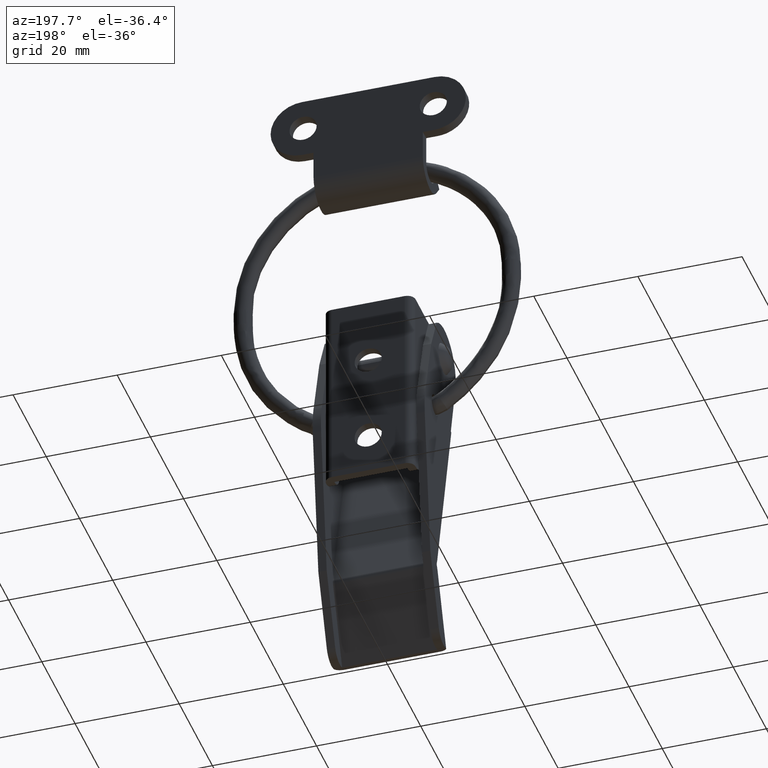
[diagram: clean part render]
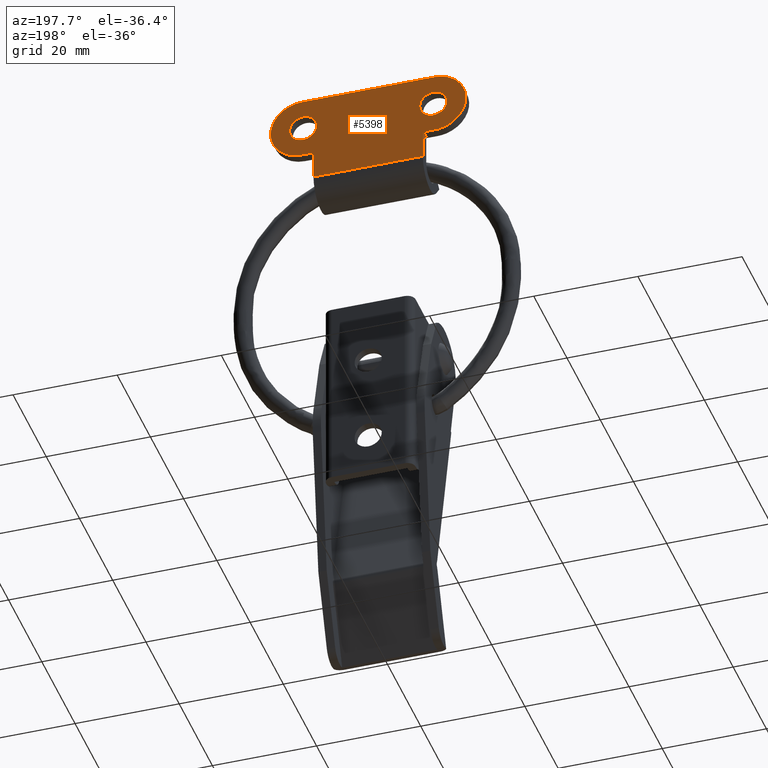
[diagram: same view with one face highlighted and labeled with its STEP entity id]
A machine part, auxiliary view. The second image highlights one B-rep face of the part: STEP entity #5398.
In plain terms, the highlighted face is a freeform B-spline surface patch.
Its self-contained STEP definition (entity closure, byte-faithful):
#4583=CARTESIAN_POINT('',(-12.500000000000000,11.599990000000000,52.100000000000001));
#4584=VERTEX_POINT('',#4583);
#4585=CARTESIAN_POINT('',(-15.091985067688750,11.599990000000000,49.703993649113279));
#4586=VERTEX_POINT('',#4585);
#4587=CARTESIAN_POINT('',(-12.500000000000000,11.599990000000000,52.100000000000001));
#4588=CARTESIAN_POINT('',(-14.903415277900445,11.599990000000000,52.100000000000001));
#4589=CARTESIAN_POINT('',(-15.091985067688750,11.599990000000002,49.703993649113279));
#4597=(BOUNDED_CURVE()B_SPLINE_CURVE(2,(#4587,#4588,#4589),.UNSPECIFIED.,.F.,.U.)B_SPLINE_CURVE_WITH_KNOTS((3,3),(0.0,0.236331300603550),.UNSPECIFIED.)CURVE()GEOMETRIC_REPRESENTATION_ITEM()RATIONAL_B_SPLINE_CURVE((1.0,0.723120658639426,0.969723356110842))REPRESENTATION_ITEM(''));
#4598=EDGE_CURVE('',#4584,#4586,#4597,.T.);
#4600=CARTESIAN_POINT('',(-9.908014932311252,11.599990000000000,49.296006350886707));
#4601=VERTEX_POINT('',#4600);
#4602=CARTESIAN_POINT('',(-9.908014932311252,11.599990000000005,49.296006350886714));
#4603=CARTESIAN_POINT('',(-9.899999999999999,11.599989999999996,49.397845721558134));
#4604=CARTESIAN_POINT('',(-9.900000000000000,11.599990000000000,49.500000000000000));
#4605=CARTESIAN_POINT('',(-9.900000000000000,11.599990000000000,52.100000000000001));
#4606=CARTESIAN_POINT('',(-12.500000000000000,11.599990000000000,52.100000000000001));
#4614=(BOUNDED_CURVE()B_SPLINE_CURVE(2,(#4602,#4603,#4604,#4605,#4606),.UNSPECIFIED.,.F.,.U.)B_SPLINE_CURVE_WITH_KNOTS((3,2,3),(0.736331300603550,0.750000000000000,1.0),.UNSPECIFIED.)CURVE()GEOMETRIC_REPRESENTATION_ITEM()RATIONAL_B_SPLINE_CURVE((0.969723356110841,0.983986122547121,1.0,0.707106781186548,1.0))REPRESENTATION_ITEM(''));
#4615=EDGE_CURVE('',#4601,#4584,#4614,.T.);
#4682=CARTESIAN_POINT('',(-12.500000000000000,11.599990000000000,46.900000000000013));
#4683=VERTEX_POINT('',#4682);
#4684=CARTESIAN_POINT('',(-15.091985067688748,11.599990000000000,49.703993649113279));
#4685=CARTESIAN_POINT('',(-15.100000000000001,11.599990000000000,49.602154278441851));
#4686=CARTESIAN_POINT('',(-15.100000000000000,11.599990000000000,49.500000000000000));
#4687=CARTESIAN_POINT('',(-15.100000000000001,11.599990000000000,46.899999999999999));
#4688=CARTESIAN_POINT('',(-12.500000000000000,11.599990000000000,46.900000000000013));
#4696=(BOUNDED_CURVE()B_SPLINE_CURVE(2,(#4684,#4685,#4686,#4687,#4688),.UNSPECIFIED.,.F.,.U.)B_SPLINE_CURVE_WITH_KNOTS((3,2,3),(0.236331300603550,0.250000000000000,0.500000000000000),.UNSPECIFIED.)CURVE()GEOMETRIC_REPRESENTATION_ITEM()RATIONAL_B_SPLINE_CURVE((0.969723356110842,0.983986122547121,1.0,0.707106781186548,1.0))REPRESENTATION_ITEM(''));
#4697=EDGE_CURVE('',#4586,#4683,#4696,.T.);
#4731=CARTESIAN_POINT('',(-12.500000000000000,11.599990000000000,46.900000000000013));
#4732=CARTESIAN_POINT('',(-10.096584722099564,11.599989999999998,46.900000000000006));
#4733=CARTESIAN_POINT('',(-9.908014932311252,11.599990000000007,49.296006350886721));
#4741=(BOUNDED_CURVE()B_SPLINE_CURVE(2,(#4731,#4732,#4733),.UNSPECIFIED.,.F.,.U.)B_SPLINE_CURVE_WITH_KNOTS((3,3),(0.500000000000000,0.736331300603549),.UNSPECIFIED.)CURVE()GEOMETRIC_REPRESENTATION_ITEM()RATIONAL_B_SPLINE_CURVE((1.0,0.723120658639427,0.969723356110841))REPRESENTATION_ITEM(''));
#4742=EDGE_CURVE('',#4683,#4601,#4741,.T.);
#4765=CARTESIAN_POINT('',(12.500000000000000,11.599990000000000,52.100000000000001));
#4766=VERTEX_POINT('',#4765);
#4767=CARTESIAN_POINT('',(9.908014932311252,11.599990000000000,49.703993649113293));
#4768=VERTEX_POINT('',#4767);
#4769=CARTESIAN_POINT('',(12.500000000000000,11.599990000000000,52.100000000000001));
#4770=CARTESIAN_POINT('',(10.096584722099555,11.599990000000000,52.100000000000001));
#4771=CARTESIAN_POINT('',(9.908014932311252,11.599990000000002,49.703993649113286));
#4779=(BOUNDED_CURVE()B_SPLINE_CURVE(2,(#4769,#4770,#4771),.UNSPECIFIED.,.F.,.U.)B_SPLINE_CURVE_WITH_KNOTS((3,3),(0.0,0.236331300603550),.UNSPECIFIED.)CURVE()GEOMETRIC_REPRESENTATION_ITEM()RATIONAL_B_SPLINE_CURVE((1.0,0.723120658639426,0.969723356110842))REPRESENTATION_ITEM(''));
#4780=EDGE_CURVE('',#4766,#4768,#4779,.T.);
#4782=CARTESIAN_POINT('',(15.091985067688750,11.599990000000000,49.296006350886707));
#4783=VERTEX_POINT('',#4782);
#4784=CARTESIAN_POINT('',(15.091985067688746,11.599990000000005,49.296006350886714));
#4785=CARTESIAN_POINT('',(15.099999999999998,11.599989999999996,49.397845721558134));
#4786=CARTESIAN_POINT('',(15.100000000000000,11.599990000000000,49.500000000000000));
#4787=CARTESIAN_POINT('',(15.100000000000001,11.599990000000000,52.100000000000001));
#4788=CARTESIAN_POINT('',(12.500000000000000,11.599990000000000,52.100000000000001));
#4796=(BOUNDED_CURVE()B_SPLINE_CURVE(2,(#4784,#4785,#4786,#4787,#4788),.UNSPECIFIED.,.F.,.U.)B_SPLINE_CURVE_WITH_KNOTS((3,2,3),(0.736331300603550,0.750000000000000,1.0),.UNSPECIFIED.)CURVE()GEOMETRIC_REPRESENTATION_ITEM()RATIONAL_B_SPLINE_CURVE((0.969723356110841,0.983986122547121,1.0,0.707106781186548,1.0))REPRESENTATION_ITEM(''));
#4797=EDGE_CURVE('',#4783,#4766,#4796,.T.);
#4864=CARTESIAN_POINT('',(12.500000000000000,11.599990000000000,46.900000000000013));
#4865=VERTEX_POINT('',#4864);
#4866=CARTESIAN_POINT('',(9.908014932311252,11.599990000000000,49.703993649113286));
#4867=CARTESIAN_POINT('',(9.899999999999999,11.599990000000000,49.602154278441851));
#4868=CARTESIAN_POINT('',(9.900000000000000,11.599990000000000,49.500000000000000));
#4869=CARTESIAN_POINT('',(9.900000000000000,11.599990000000000,46.899999999999999));
#4870=CARTESIAN_POINT('',(12.500000000000000,11.599990000000000,46.900000000000013));
#4878=(BOUNDED_CURVE()B_SPLINE_CURVE(2,(#4866,#4867,#4868,#4869,#4870),.UNSPECIFIED.,.F.,.U.)B_SPLINE_CURVE_WITH_KNOTS((3,2,3),(0.236331300603550,0.250000000000000,0.500000000000000),.UNSPECIFIED.)CURVE()GEOMETRIC_REPRESENTATION_ITEM()RATIONAL_B_SPLINE_CURVE((0.969723356110842,0.983986122547121,1.0,0.707106781186548,1.0))REPRESENTATION_ITEM(''));
#4879=EDGE_CURVE('',#4768,#4865,#4878,.T.);
#4913=CARTESIAN_POINT('',(12.500000000000000,11.599990000000000,46.900000000000013));
#4914=CARTESIAN_POINT('',(14.903415277900443,11.599989999999998,46.900000000000006));
#4915=CARTESIAN_POINT('',(15.091985067688750,11.599990000000007,49.296006350886721));
#4923=(BOUNDED_CURVE()B_SPLINE_CURVE(2,(#4913,#4914,#4915),.UNSPECIFIED.,.F.,.U.)B_SPLINE_CURVE_WITH_KNOTS((3,3),(0.500000000000000,0.736331300603549),.UNSPECIFIED.)CURVE()GEOMETRIC_REPRESENTATION_ITEM()RATIONAL_B_SPLINE_CURVE((1.0,0.723120658639427,0.969723356110841))REPRESENTATION_ITEM(''));
#4924=EDGE_CURVE('',#4865,#4783,#4923,.T.);
#5075=CARTESIAN_POINT('',(10.499999999999840,11.599990000000000,38.0));
#5076=VERTEX_POINT('',#5075);
#5092=CARTESIAN_POINT('',(10.499999999999840,11.599990000000000,43.500000000000000));
#5093=VERTEX_POINT('',#5092);
#5094=CARTESIAN_POINT('',(10.499999999999840,11.599990000000000,38.0));
#5095=CARTESIAN_POINT('',(10.499999999999840,11.599990000000000,43.500000000000000));
#5096=QUASI_UNIFORM_CURVE('',1,(#5094,#5095),.UNSPECIFIED.,.F.,.U.);
#5097=EDGE_CURVE('',#5076,#5093,#5096,.T.);
#5175=CARTESIAN_POINT('',(-10.500000000000000,11.599990000000000,43.500000000000000));
#5176=VERTEX_POINT('',#5175);
#5182=CARTESIAN_POINT('',(-10.500000000000000,11.599990000000000,38.0));
#5183=VERTEX_POINT('',#5182);
#5184=CARTESIAN_POINT('',(-10.500000000000000,11.599990000000000,38.0));
#5185=CARTESIAN_POINT('',(-10.500000000000000,11.599990000000000,43.500000000000000));
#5186=QUASI_UNIFORM_CURVE('',1,(#5184,#5185),.UNSPECIFIED.,.F.,.U.);
#5187=EDGE_CURVE('',#5183,#5176,#5186,.T.);
#5313=CARTESIAN_POINT('',(-10.500000000000000,11.599990000000000,38.0));
#5314=CARTESIAN_POINT('',(10.499999999999840,11.599990000000000,38.0));
#5315=QUASI_UNIFORM_CURVE('',1,(#5313,#5314),.UNSPECIFIED.,.F.,.U.);
#5316=EDGE_CURVE('',#5183,#5076,#5315,.T.);
#5321=CARTESIAN_POINT('',(-20.623124927317519,11.599990000000000,56.374124966081610));
#5322=CARTESIAN_POINT('',(20.623125933146099,11.599990000000000,56.374124966081610));
#5323=CARTESIAN_POINT('',(-20.623124927317519,11.599990000000000,37.125874564531820));
#5324=CARTESIAN_POINT('',(20.623125933146099,11.599990000000000,37.125874564531820));
#5325=B_SPLINE_SURFACE_WITH_KNOTS('',1,1,((#5321,#5323),(#5322,#5324)),.UNSPECIFIED.,.F.,.F.,.U.,(2,2),(2,2),(0.0,41.246250860463611),(0.0,19.248250401549790),.UNSPECIFIED.);
#5326=CARTESIAN_POINT('',(12.749999685840621,11.599990000000000,43.500000000000000));
#5327=VERTEX_POINT('',#5326);
#5328=CARTESIAN_POINT('',(12.749999685840621,11.599990000000000,43.500000000000000));
#5329=CARTESIAN_POINT('',(10.499999999999840,11.599990000000000,43.500000000000000));
#5330=QUASI_UNIFORM_CURVE('',1,(#5328,#5329),.UNSPECIFIED.,.F.,.U.);
#5331=EDGE_CURVE('',#5327,#5093,#5330,.T.);
#5332=ORIENTED_EDGE('',*,*,#5331,.T.);
#5333=ORIENTED_EDGE('',*,*,#5097,.F.);
#5334=ORIENTED_EDGE('',*,*,#5316,.F.);
#5335=ORIENTED_EDGE('',*,*,#5187,.T.);
#5336=CARTESIAN_POINT('',(-12.750000000000000,11.599990000000000,43.500000000000000));
#5337=VERTEX_POINT('',#5336);
#5338=CARTESIAN_POINT('',(-10.500000000000000,11.599990000000000,43.500000000000000));
#5339=CARTESIAN_POINT('',(-12.750000000000000,11.599990000000000,43.500000000000000));
#5340=QUASI_UNIFORM_CURVE('',1,(#5338,#5339),.UNSPECIFIED.,.F.,.U.);
#5341=EDGE_CURVE('',#5176,#5337,#5340,.T.);
#5342=ORIENTED_EDGE('',*,*,#5341,.T.);
#5343=CARTESIAN_POINT('',(-12.750000314159260,11.599990000000000,55.500000000000000));
#5344=VERTEX_POINT('',#5343);
#5345=CARTESIAN_POINT('',(-12.750000314159260,11.599990000000000,55.499999999999993));
#5346=CARTESIAN_POINT('',(-18.750000157079629,11.599990000000002,55.499999685840763));
#5347=CARTESIAN_POINT('',(-18.750000000000000,11.599990000000000,49.499999842920367));
#5348=CARTESIAN_POINT('',(-18.749999842920364,11.599990000000002,43.500000000000007));
#5349=CARTESIAN_POINT('',(-12.750000000000000,11.599990000000000,43.500000000000007));
#5357=(BOUNDED_CURVE()B_SPLINE_CURVE(2,(#5345,#5346,#5347,#5348,#5349),.UNSPECIFIED.,.F.,.U.)B_SPLINE_CURVE_WITH_KNOTS((3,2,3),(0.0,0.500000000000000,1.0),.UNSPECIFIED.)CURVE()GEOMETRIC_REPRESENTATION_ITEM()RATIONAL_B_SPLINE_CURVE((1.0,0.707106790442553,1.0,0.707106790442553,1.0))REPRESENTATION_ITEM(''));
#5358=EDGE_CURVE('',#5344,#5337,#5357,.T.);
#5359=ORIENTED_EDGE('',*,*,#5358,.F.);
#5360=CARTESIAN_POINT('',(12.750000000000000,11.599990000000000,55.500000000000000));
#5361=VERTEX_POINT('',#5360);
#5362=CARTESIAN_POINT('',(-12.750000314159260,11.599990000000000,55.500000000000000));
#5363=CARTESIAN_POINT('',(12.750000000000000,11.599990000000000,55.500000000000000));
#5364=QUASI_UNIFORM_CURVE('',1,(#5362,#5363),.UNSPECIFIED.,.F.,.U.);
#5365=EDGE_CURVE('',#5344,#5361,#5364,.T.);
#5366=ORIENTED_EDGE('',*,*,#5365,.T.);
#5367=CARTESIAN_POINT('',(12.749999685840621,11.599990000000000,43.500000000000007));
#5368=CARTESIAN_POINT('',(16.214101370791568,11.599990000000002,43.499999818620005));
#5369=CARTESIAN_POINT('',(17.946152317986829,11.599990000000000,46.499999818619997));
#5370=CARTESIAN_POINT('',(19.678203265182109,11.599990000000002,49.499999818619997));
#5371=CARTESIAN_POINT('',(17.946152475066530,11.599990000000000,52.499999909309999));
#5372=CARTESIAN_POINT('',(16.214101684950954,11.599990000000002,55.500000000000007));
#5373=CARTESIAN_POINT('',(12.750000000000000,11.599990000000000,55.500000000000000));
#5381=(BOUNDED_CURVE()B_SPLINE_CURVE(2,(#5367,#5368,#5369,#5370,#5371,#5372,#5373),.UNSPECIFIED.,.F.,.U.)B_SPLINE_CURVE_WITH_KNOTS((3,2,2,3),(0.0,0.333333333333333,0.666666666666667,1.0),.UNSPECIFIED.)CURVE()GEOMETRIC_REPRESENTATION_ITEM()RATIONAL_B_SPLINE_CURVE((1.0,0.866025399421114,1.0,0.866025399421114,1.0,0.866025399421114,1.0))REPRESENTATION_ITEM(''));
#5382=EDGE_CURVE('',#5327,#5361,#5381,.T.);
#5383=ORIENTED_EDGE('',*,*,#5382,.F.);
#5384=EDGE_LOOP('',(#5332,#5333,#5334,#5335,#5342,#5359,#5366,#5383));
#5385=FACE_OUTER_BOUND('',#5384,.T.);
#5386=ORIENTED_EDGE('',*,*,#4924,.T.);
#5387=ORIENTED_EDGE('',*,*,#4797,.T.);
#5388=ORIENTED_EDGE('',*,*,#4780,.T.);
#5389=ORIENTED_EDGE('',*,*,#4879,.T.);
#5390=EDGE_LOOP('',(#5386,#5387,#5388,#5389));
#5391=FACE_BOUND('',#5390,.T.);
#5392=ORIENTED_EDGE('',*,*,#4742,.T.);
#5393=ORIENTED_EDGE('',*,*,#4615,.T.);
#5394=ORIENTED_EDGE('',*,*,#4598,.T.);
#5395=ORIENTED_EDGE('',*,*,#4697,.T.);
#5396=EDGE_LOOP('',(#5392,#5393,#5394,#5395));
#5397=FACE_BOUND('',#5396,.T.);
#5398=ADVANCED_FACE('',(#5385,#5391,#5397),#5325,.T.);